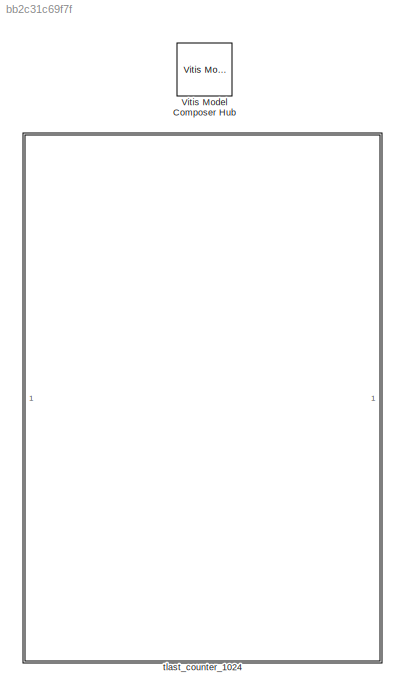
MODEL slx_bb2c31c69f7f
KIND model
CONFIG AbsTol = auto
CONFIG EnableMultiTasking = off
CONFIG FixedStep = auto
CONFIG MaxStep = auto
CONFIG MinStep = auto
CONFIG RelTol = 1e-3
CONFIG SampleTimeConstraint = Unconstrained
CONFIG SolverName = VariableStepAuto
CONFIG StartTime = 0.0
CONFIG StopTime = 5/16e6
BLOCK [Reference] Vitis Model Composer Hub  REF=vmcUtilities/Vitis Model Composer Hub
  SourceBlock = vmcUtilities/Vitis Model Composer Hub
  SourceType = VMC Hub
  Tag = genX
  UserDataPersistent = on
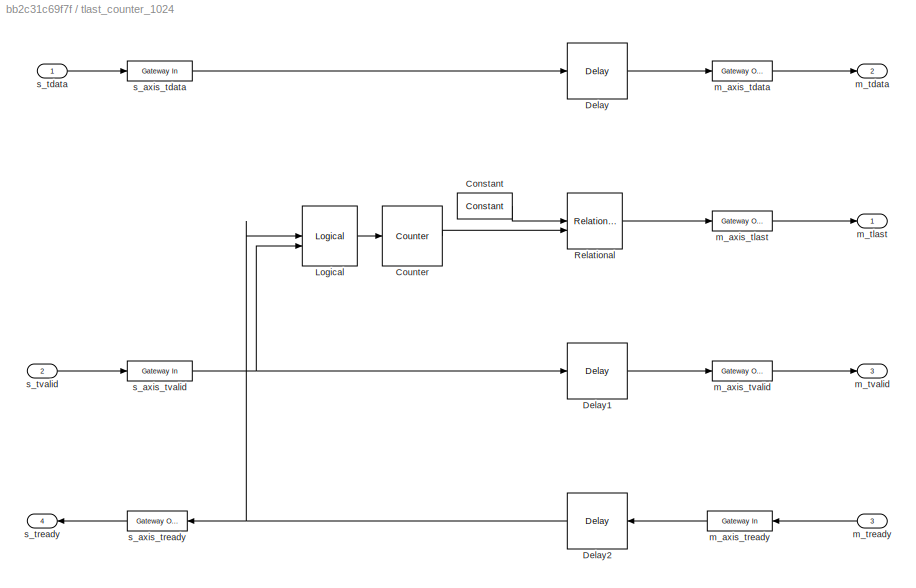
BLOCK [SubSystem] tlast_counter_1024
  PortSchema = {"entries":[{"content":{"sides":[{"content":{"connectorIds":["In1","In2","Out4"]},"type":"ConnectorPlacement.EquallySpacedRectSide","uuid":"eb74909a-28d6-49bb-8ba1-8d6247087b66"},{"content":{"connectorIds":["Out1","Out2","Out3","In3"],"side":"RIGHT"},"type":"ConnectorPlacement.EquallySpacedRectSide","uuid":"e220c643-32b2-4718-b969-1ae45378effa"},{"content":{"side":"TOP"},"type":"ConnectorPlacement...<+255ch>
BLOCK [Reference] tlast_counter_1024/Constant  REF=hdlBasic/Constant
  SourceBlock = hdlBasic/Constant
  SourceType = Constant Block Block
BLOCK [Reference] tlast_counter_1024/Counter  REF=hdlBasic/Counter
  SourceBlock = hdlBasic/Counter
  SourceType = Counter Block
BLOCK [Reference] tlast_counter_1024/Delay  REF=hdlBasic/Delay
  SourceBlock = hdlBasic/Delay
  SourceType = Delay Block
BLOCK [Reference] tlast_counter_1024/Delay1  REF=hdlBasic/Delay
  SourceBlock = hdlBasic/Delay
  SourceType = Delay Block
BLOCK [Reference] tlast_counter_1024/Delay2  REF=hdlBasic/Delay
  SourceBlock = hdlBasic/Delay
  SourceType = Delay Block
BLOCK [Reference] tlast_counter_1024/Logical  REF=hdlBasic/Logical
  SourceBlock = hdlBasic/Logical
  SourceType = Logical Block Block
BLOCK [Reference] tlast_counter_1024/Relational  REF=hdlBasic/Relational
  SourceBlock = hdlBasic/Relational
  SourceType = Arithmetic Relational Operator Block
BLOCK [Reference] tlast_counter_1024/m_axis_tdata  REF=hdlBasic/Gateway Out
  SourceBlock = hdlBasic/Gateway Out
  SourceType = Gateway Out Block
BLOCK [Reference] tlast_counter_1024/m_axis_tlast  REF=hdlBasic/Gateway Out
  SourceBlock = hdlBasic/Gateway Out
  SourceType = Gateway Out Block
BLOCK [Reference] tlast_counter_1024/m_axis_tready  REF=hdlBasic/Gateway In
  SourceBlock = hdlBasic/Gateway In
  SourceType = Gateway In Block
BLOCK [Reference] tlast_counter_1024/m_axis_tvalid  REF=hdlBasic/Gateway Out
  SourceBlock = hdlBasic/Gateway Out
  SourceType = Gateway Out Block
BLOCK [Outport] tlast_counter_1024/m_tdata
  Port = 2
BLOCK [Outport] tlast_counter_1024/m_tlast
BLOCK [Inport] tlast_counter_1024/m_tready
  Port = 3
BLOCK [Outport] tlast_counter_1024/m_tvalid
  Port = 3
BLOCK [Reference] tlast_counter_1024/s_axis_tdata  REF=hdlBasic/Gateway In
  SourceBlock = hdlBasic/Gateway In
  SourceType = Gateway In Block
BLOCK [Reference] tlast_counter_1024/s_axis_tready  REF=hdlBasic/Gateway Out
  SourceBlock = hdlBasic/Gateway Out
  SourceType = Gateway Out Block
BLOCK [Reference] tlast_counter_1024/s_axis_tvalid  REF=hdlBasic/Gateway In
  SourceBlock = hdlBasic/Gateway In
  SourceType = Gateway In Block
BLOCK [Inport] tlast_counter_1024/s_tdata
BLOCK [Outport] tlast_counter_1024/s_tready
  Port = 4
BLOCK [Inport] tlast_counter_1024/s_tvalid
  Port = 2
LINE tlast_counter_1024/Constant:1 -> tlast_counter_1024/Relational:1
LINE tlast_counter_1024/Counter:1 -> tlast_counter_1024/Relational:2
LINE tlast_counter_1024/Delay1:1 -> tlast_counter_1024/m_axis_tvalid:1
NET tlast_counter_1024/Delay2:1 -> tlast_counter_1024/Logical:1, tlast_counter_1024/s_axis_tready:1
LINE tlast_counter_1024/Delay:1 -> tlast_counter_1024/m_axis_tdata:1
LINE tlast_counter_1024/Logical:1 -> tlast_counter_1024/Counter:1
LINE tlast_counter_1024/Relational:1 -> tlast_counter_1024/m_axis_tlast:1
LINE tlast_counter_1024/m_axis_tdata:1 -> tlast_counter_1024/m_tdata:1
LINE tlast_counter_1024/m_axis_tlast:1 -> tlast_counter_1024/m_tlast:1
LINE tlast_counter_1024/m_axis_tready:1 -> tlast_counter_1024/Delay2:1
LINE tlast_counter_1024/m_axis_tvalid:1 -> tlast_counter_1024/m_tvalid:1
LINE tlast_counter_1024/m_tready:1 -> tlast_counter_1024/m_axis_tready:1
LINE tlast_counter_1024/s_axis_tdata:1 -> tlast_counter_1024/Delay:1
LINE tlast_counter_1024/s_axis_tready:1 -> tlast_counter_1024/s_tready:1
NET tlast_counter_1024/s_axis_tvalid:1 -> tlast_counter_1024/Delay1:1, tlast_counter_1024/Logical:2
LINE tlast_counter_1024/s_tdata:1 -> tlast_counter_1024/s_axis_tdata:1
LINE tlast_counter_1024/s_tvalid:1 -> tlast_counter_1024/s_axis_tvalid:1
note: NET lines group one-source signal fan-out (src -> all destinations, sorted); 1:1 wires keep LINE
